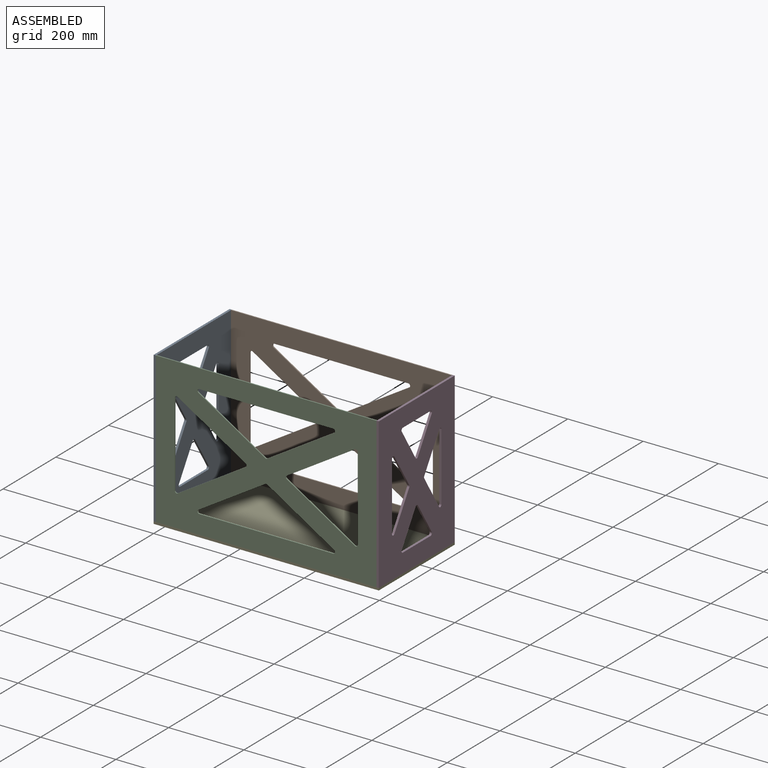
[diagram: assembled view]
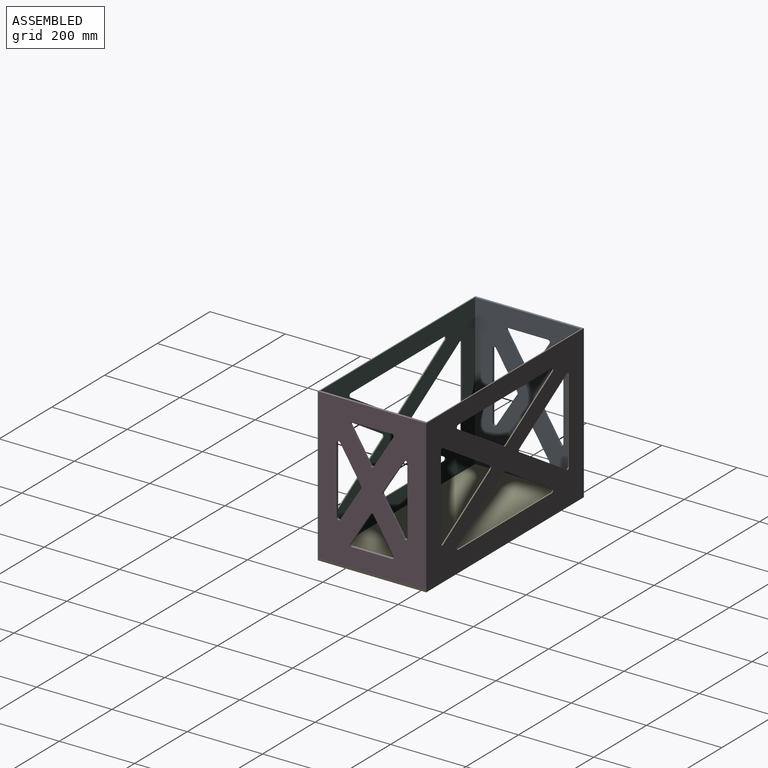
[diagram: assembled view, second angle]
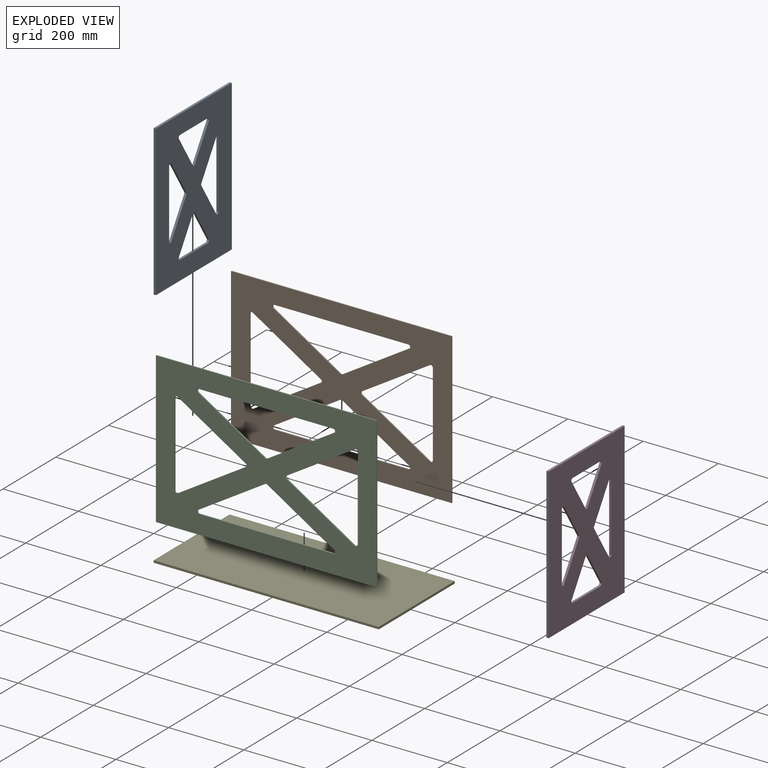
[diagram: exploded view]
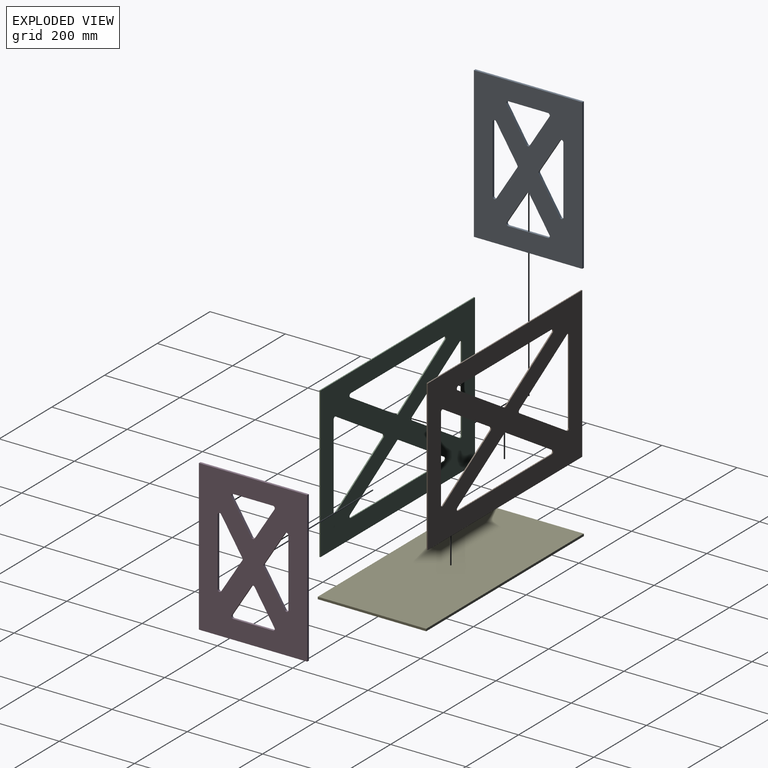
[diagram: exploded view, second angle]
ASSEMBLY  parts=5 mates=12
PART A: 30 faces, bbox 6x288x400 mm
  f0: plane 400x288mm, normal (1,0,0), area 88924.2mm2, adj f2,f3,f4,f5,f6,f7,f8,f9
  f1: plane 400x288mm, normal (-1,0,0), area 88924.2mm2, adj f2,f3,f4,f5,f6,f7,f8,f9
  f2: plane 400x6mm, normal (0,1,0), area 2400mm2, adj f0,f1,f3,f5
  f3: plane 288x6mm, normal (0,0,1), area 1728mm2, adj f0,f1,f2,f4
  f4: plane 400x6mm, normal (0,-1,0), area 2400mm2, adj f0,f1,f3,f5
  f5: plane 288x6mm, normal (0,0,-1), area 1728mm2, adj f0,f1,f2,f4
  f6: plane 105.37x6mm, normal (0,0,-1), area 632.2mm2, adj f0,f1,f27,f29
  f7: plane 84.07x52.69mm, normal (0,0.85,0.53), area 595.3mm2, adj f0,f1,f28,f29
  f8: plane 84.07x52.69mm, normal (0,-0.85,0.53), area 595.3mm2, adj f0,f1,f27,f28
  f9: plane 179.92x6mm, normal (0,-1,0), area 1079.5mm2, adj f0,f1,f18,f20
  f10: plane 89.96x56.37mm, normal (0,0.85,-0.53), area 637mm2, adj f0,f1,f19,f20
  f11: plane 89.96x56.37mm, normal (0,0.85,0.53), area 637mm2, adj f0,f1,f18,f19
  f12: plane 84.07x52.69mm, normal (0,0.85,-0.53), area 595.3mm2, adj f0,f1,f24,f26
  f13: plane 105.37x6mm, normal (0,0,1), area 632.2mm2, adj f0,f1,f24,f25
  f14: plane 84.07x52.69mm, normal (0,-0.85,-0.53), area 595.3mm2, adj f0,f1,f25,f26
  f15: plane 89.96x56.37mm, normal (0,-0.85,-0.53), area 637mm2, adj f0,f1,f21,f23
  f16: plane 179.92x6mm, normal (0,1,0), area 1079.5mm2, adj f0,f1,f22,f23
  f17: plane 89.96x56.37mm, normal (0,-0.85,0.53), area 637mm2, adj f0,f1,f21,f22
  f18: cylinder r=5mm len=9.24mm, axis (-1,0,0), area 77.5mm2, adj f0,f1,f9,f11
  f19: cylinder r=5mm len=6mm, axis (-1,0,0), area 33.6mm2, adj f0,f1,f10,f11
  f20: cylinder r=5mm len=9.24mm, axis (-1,0,0), area 77.5mm2, adj f0,f1,f9,f10
  f21: cylinder r=5mm len=6mm, axis (-1,0,0), area 33.6mm2, adj f0,f1,f15,f17
  f22: cylinder r=5mm len=9.24mm, axis (1,0,0), area 77.5mm2, adj f0,f1,f16,f17
  f23: cylinder r=5mm len=9.24mm, axis (1,0,0), area 77.5mm2, adj f0,f1,f15,f16
  f24: cylinder r=5mm len=7.66mm, axis (1,0,0), area 63.9mm2, adj f0,f1,f12,f13
  f25: cylinder r=5mm len=7.66mm, axis (1,0,0), area 63.9mm2, adj f0,f1,f13,f14
  f26: cylinder r=5mm len=8.47mm, axis (-1,0,0), area 60.7mm2, adj f0,f1,f12,f14
  f27: cylinder r=5mm len=7.66mm, axis (1,0,0), area 63.9mm2, adj f0,f1,f6,f8
  f28: cylinder r=5mm len=8.47mm, axis (-1,0,0), area 60.7mm2, adj f0,f1,f7,f8
  f29: cylinder r=5mm len=7.66mm, axis (1,0,0), area 63.9mm2, adj f0,f1,f6,f7
PART B: 30 faces, bbox 586x3x400 mm
  f0: plane 586x400mm, normal (0,-1,0), area 140449.7mm2, adj f2,f3,f4,f5,f6,f7,f8,f9
  f1: plane 586x400mm, normal (0,1,0), area 140449.7mm2, adj f2,f3,f4,f5,f6,f7,f8,f9
  f2: plane 586x3mm, normal (0,0,1), area 1758mm2, adj f0,f1,f3,f5
  f3: plane 400x3mm, normal (-1,0,0), area 1200mm2, adj f0,f1,f2,f4
  f4: plane 586x3mm, normal (0,0,-1), area 1758mm2, adj f0,f1,f3,f5
  f5: plane 400x3mm, normal (1,0,0), area 1200mm2, adj f0,f1,f2,f4
  f6: plane 355.57x3mm, normal (0,0,-1), area 1066.7mm2, adj f0,f1,f27,f29
  f7: plane 177.79x109.74mm, normal (0.53,0,0.85), area 626.8mm2, adj f0,f1,f28,f29
  f8: plane 177.79x109.74mm, normal (-0.53,0,0.85), area 626.8mm2, adj f0,f1,f27,f28
  f9: plane 223.32x3mm, normal (-1,0,0), area 669.9mm2, adj f0,f1,f18,f20
  f10: plane 180.89x111.66mm, normal (0.53,0,-0.85), area 637.7mm2, adj f0,f1,f19,f20
  f11: plane 180.89x111.66mm, normal (0.53,0,0.85), area 637.7mm2, adj f0,f1,f18,f19
  f12: plane 177.79x109.74mm, normal (0.53,0,-0.85), area 626.8mm2, adj f0,f1,f24,f26
  f13: plane 355.57x3mm, normal (0,0,1), area 1066.7mm2, adj f0,f1,f24,f25
  f14: plane 177.79x109.74mm, normal (-0.53,0,-0.85), area 626.8mm2, adj f0,f1,f25,f26
  f15: plane 180.89x111.66mm, normal (-0.53,0,-0.85), area 637.7mm2, adj f0,f1,f21,f23
  f16: plane 223.32x3mm, normal (1,0,0), area 669.9mm2, adj f0,f1,f22,f23
  f17: plane 180.89x111.66mm, normal (-0.53,0,0.85), area 637.7mm2, adj f0,f1,f21,f22
  f18: cylinder r=5mm len=7.63mm, axis (0,-1,0), area 31.9mm2, adj f0,f1,f9,f11
  f19: cylinder r=5mm len=8.51mm, axis (0,1,0), area 30.5mm2, adj f0,f1,f10,f11
  f20: cylinder r=5mm len=7.63mm, axis (0,-1,0), area 31.9mm2, adj f0,f1,f9,f10
  f21: cylinder r=5mm len=8.51mm, axis (0,1,0), area 30.5mm2, adj f0,f1,f15,f17
  f22: cylinder r=5mm len=7.63mm, axis (0,-1,0), area 31.9mm2, adj f0,f1,f16,f17
  f23: cylinder r=5mm len=7.63mm, axis (0,-1,0), area 31.9mm2, adj f0,f1,f15,f16
  f24: cylinder r=5mm len=9.25mm, axis (0,1,0), area 38.8mm2, adj f0,f1,f12,f13
  f25: cylinder r=5mm len=9.25mm, axis (0,1,0), area 38.8mm2, adj f0,f1,f13,f14
  f26: cylinder r=5mm len=5.25mm, axis (0,1,0), area 16.6mm2, adj f0,f1,f12,f14
  f27: cylinder r=5mm len=9.25mm, axis (0,-1,0), area 38.8mm2, adj f0,f1,f6,f8
  f28: cylinder r=5mm len=5.25mm, axis (0,1,0), area 16.6mm2, adj f0,f1,f7,f8
  f29: cylinder r=5mm len=9.25mm, axis (0,-1,0), area 38.8mm2, adj f0,f1,f6,f7
PART C: same geometry as B
PART D: same geometry as A
PART E: 6 faces, bbox 598x288x6 mm
  f0: plane 288x6mm, normal (1,0,0), area 1728mm2, adj f1,f3,f4,f5
  f1: plane 598x6mm, normal (0,1,0), area 3588mm2, adj f0,f2,f4,f5
  f2: plane 288x6mm, normal (-1,0,0), area 1728mm2, adj f1,f3,f4,f5
  f3: plane 598x6mm, normal (0,-1,0), area 3588mm2, adj f0,f2,f4,f5
  f4: plane 598x288mm, normal (0,0,1), area 172224mm2, adj f0,f1,f2,f3
  f5: plane 598x288mm, normal (0,0,-1), area 172224mm2, adj f0,f1,f2,f3
PLACE A t=(-299,0,200)mm
PLACE B t=(0,144,200)mm
PLACE C t=(0,-141,200)mm
PLACE D t=(293,0,200)mm
PLACE E t=(0,0,-6)mm
MATE planar D.f1 <-> C.f5  axis (-1,0,0) through (293,0,200)mm
MATE planar A.f5 <-> E.f4  axis (0,0,-1) through (-296,0,0)mm
MATE planar C.f2 <-> A.f3  axis (0,0,1) through (0,-142.5,400)mm
MATE planar B.f4 <-> E.f4  axis (0,0,-1) through (0,142.5,0)mm
MATE planar E.f0 <-> D.f0  axis (1,0,0) through (299,0,-3)mm
MATE planar B.f5 <-> D.f1  axis (1,0,0) through (293,142.5,200)mm
MATE planar D.f5 <-> E.f4  axis (0,0,-1) through (296,0,0)mm
MATE planar D.f4 <-> E.f3  axis (0,-1,0) through (296,-144,200)mm
MATE planar A.f1 <-> E.f2  axis (-1,0,0) through (-299,4.24,141.73)mm
MATE planar A.f4 <-> E.f3  axis (0,-1,0) through (-296,-144,200)mm
MATE planar E.f3 <-> C.f0  axis (0,-1,0) through (0,-144,-3)mm
MATE planar D.f2 <-> B.f1  axis (0,1,0) through (296,144,200)mm
